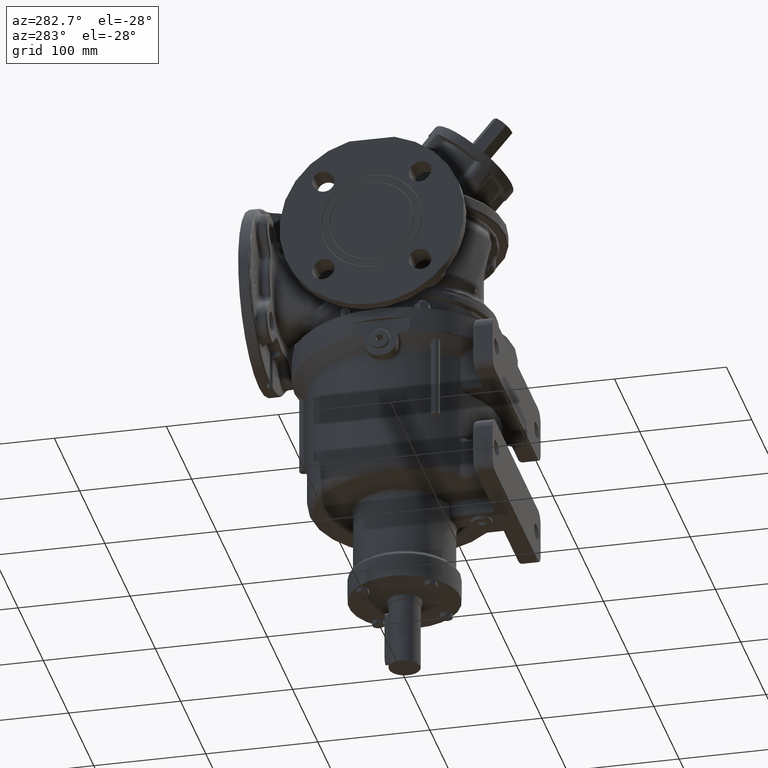
[diagram: clean part render]
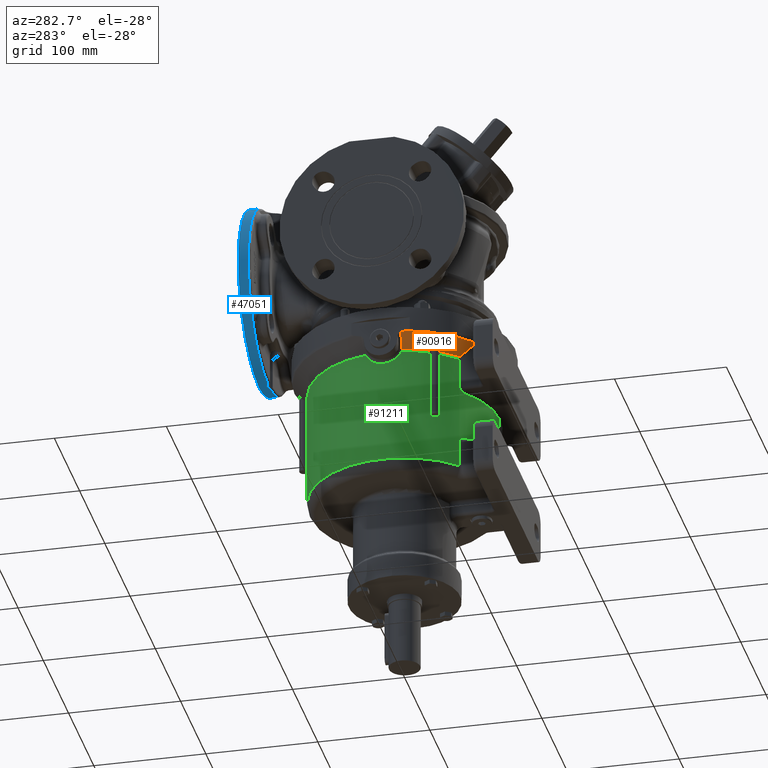
[diagram: same view with three faces highlighted in distinct colors, each labeled with its STEP entity id]
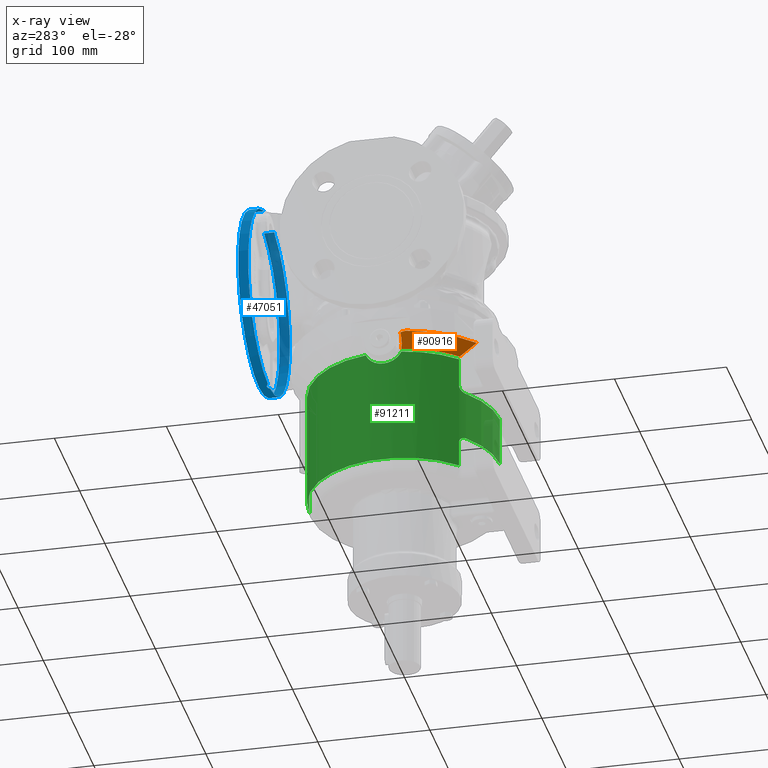
[diagram: x-ray of the same camera — body ghosted, the three highlighted faces saturated]
A machine part, auxiliary view with three faces highlighted in distinct colors.
The next image is the same camera in x-ray (body ghosted, the three faces saturated) — at least one of them is partly hidden behind the body in this view.
Their STEP definitions:

[orange] entity #90916 — the highlighted conical surface has half-angle 45 deg.
#29976=CARTESIAN_POINT('',(-9.5E1,-1.761329098185E1,-1.388101625872E1));
#29977=CARTESIAN_POINT('',(-9.5E1,-1.815064639988E1,-1.378305831121E1));
#29978=CARTESIAN_POINT('',(-9.5E1,-1.922690537515E1,-1.357819048843E1));
#29979=CARTESIAN_POINT('',(-9.5E1,-2.084560343901E1,-1.324413526992E1));
#29980=CARTESIAN_POINT('',(-9.5E1,-2.192829400964E1,-1.300347855341E1));
#29981=CARTESIAN_POINT('',(-9.5E1,-2.247047364031E1,-1.287867965644E1));
#29983=CARTESIAN_POINT('',(0.E0,0.E0,-1.287867965644E1));
#29984=DIRECTION('',(0.E0,0.E0,-1.E0));
#29985=DIRECTION('',(-6.104712912239E-1,-7.920383845442E-1,0.E0));
#29986=AXIS2_PLACEMENT_3D('',#29983,#29984,#29985);
#29988=CARTESIAN_POINT('',(-5.921021708917E1,-7.731582066189E1,
-1.311629534482E1));
#29989=CARTESIAN_POINT('',(-5.925288829204E1,-7.731626576852E1,
-1.308999746491E1));
#29990=CARTESIAN_POINT('',(-5.933828661276E1,-7.731715644652E1,
-1.303733254524E1));
#29991=CARTESIAN_POINT('',(-5.946655107853E1,-7.731849384072E1,
-1.295812800727E1));
#29992=CARTESIAN_POINT('',(-5.955217390162E1,-7.731938636823E1,
-1.290518563004E1));
#29993=CARTESIAN_POINT('',(-5.959501348112E1,-7.731983286199E1,
-1.287867965644E1));
#29995=CARTESIAN_POINT('',(-5.904159226380E1,-6.236375551944E1,
-2.462132034356E1));
#29996=CARTESIAN_POINT('',(-5.904933324161E1,-6.299963469418E1,
-2.415423289237E1));
#29997=CARTESIAN_POINT('',(-5.906490841192E1,-6.429059684672E1,
-2.319953336480E1));
#29998=CARTESIAN_POINT('',(-5.908846983588E1,-6.628181365616E1,
-2.170733054982E1));
#29999=CARTESIAN_POINT('',(-5.911229341502E1,-6.833738719400E1,
-2.014704832011E1));
#30000=CARTESIAN_POINT('',(-5.913635740395E1,-7.046010189658E1,
-1.851571196521E1));
#30001=CARTESIAN_POINT('',(-5.916069290065E1,-7.265778589862E1,
-1.680637527972E1));
#30002=CARTESIAN_POINT('',(-5.918527032129E1,-7.493321920190E1,
-1.501590470135E1));
#30003=CARTESIAN_POINT('',(-5.920187779724E1,-7.651185350635E1,
-1.375965915280E1));
#30004=CARTESIAN_POINT('',(-5.921021708917E1,-7.731582066189E1,
-1.311629534482E1));
#30006=CARTESIAN_POINT('',(0.E0,0.E0,-2.462132034356E1));
#30007=DIRECTION('',(0.E0,0.E0,1.E0));
#30008=DIRECTION('',(-8.555669295082E-1,-5.176922146720E-1,0.E0));
#30009=AXIS2_PLACEMENT_3D('',#30006,#30007,#30008);
#30011=CARTESIAN_POINT('',(-7.347495826388E1,-4.445872386445E1,
-2.462132034356E1));
#30012=CARTESIAN_POINT('',(-7.346714105312E1,-4.452324184851E1,
-2.459460803251E1));
#30013=CARTESIAN_POINT('',(-7.345418003608E1,-4.465364049765E1,
-2.453806786871E1));
#30014=CARTESIAN_POINT('',(-7.344319812381E1,-4.485278589903E1,
-2.444382326924E1));
#30015=CARTESIAN_POINT('',(-7.344108135142E1,-4.505548310756E1,
-2.433980607158E1));
#30016=CARTESIAN_POINT('',(-7.344828835347E1,-4.526153000393E1,
-2.422574269568E1));
#30017=CARTESIAN_POINT('',(-7.346530336106E1,-4.547071522535E1,
-2.410134614049E1));
#30018=CARTESIAN_POINT('',(-7.349263756221E1,-4.568274938040E1,
-2.396635100777E1));
#30019=CARTESIAN_POINT('',(-7.353082087112E1,-4.589727565140E1,
-2.382051554327E1));
#30020=CARTESIAN_POINT('',(-7.358039513277E1,-4.611385935038E1,
-2.366363327807E1));
#30021=CARTESIAN_POINT('',(-7.364190221977E1,-4.633197370992E1,
-2.349555100346E1));
#30022=CARTESIAN_POINT('',(-7.371587431030E1,-4.655100297759E1,
-2.331617558112E1));
#30023=CARTESIAN_POINT('',(-7.380282011213E1,-4.677023312211E1,
-2.312549057680E1));
#30024=CARTESIAN_POINT('',(-7.390320369638E1,-4.698883751645E1,
-2.292358168222E1));
#30025=CARTESIAN_POINT('',(-7.401743350910E1,-4.720589329945E1,
-2.271063686797E1));
#30026=CARTESIAN_POINT('',(-7.414583672136E1,-4.742036791459E1,
-2.248697459262E1));
#30027=CARTESIAN_POINT('',(-7.428863365224E1,-4.763112199986E1,
-2.225306292757E1));
#30028=CARTESIAN_POINT('',(-7.444592573889E1,-4.783693442329E1,
-2.200951499749E1));
#30029=CARTESIAN_POINT('',(-7.461765826378E1,-4.803649545365E1,
-2.175712258088E1));
#30030=CARTESIAN_POINT('',(-7.480360584063E1,-4.822843869503E1,
-2.149684940397E1));
#30031=CARTESIAN_POINT('',(-7.500334803934E1,-4.841136185107E1,
-2.122983859163E1));
#30032=CARTESIAN_POINT('',(-7.521626913419E1,-4.858386816841E1,
-2.095738860950E1));
#30033=CARTESIAN_POINT('',(-7.544149048115E1,-4.874456151984E1,
-2.068101106073E1));
#30034=CARTESIAN_POINT('',(-7.567802433323E1,-4.889219664605E1,
-2.040221856284E1));
#30035=CARTESIAN_POINT('',(-7.592452713707E1,-4.902552506233E1,
-2.012281462616E1));
#30036=CARTESIAN_POINT('',(-7.617861687815E1,-4.914312149317E1,
-1.984556091805E1));
#30037=CARTESIAN_POINT('',(-7.643782799312E1,-4.924407590791E1,
-1.957300058318E1));
#30038=CARTESIAN_POINT('',(-7.670046032399E1,-4.932815896723E1,
-1.930665699772E1));
#30039=CARTESIAN_POINT('',(-7.696494057409E1,-4.939537460012E1,
-1.904781466487E1));
#30040=CARTESIAN_POINT('',(-7.722968072501E1,-4.944590517960E1,
-1.879767003175E1));
#30041=CARTESIAN_POINT('',(-7.749322804373E1,-4.948012610116E1,
-1.855719959588E1));
#30042=CARTESIAN_POINT('',(-7.775424823052E1,-4.949856491632E1,
-1.832719814343E1));
#30043=CARTESIAN_POINT('',(-7.801153661515E1,-4.950187538131E1,
-1.810828511787E1));
#30044=CARTESIAN_POINT('',(-7.826404189022E1,-4.949080949404E1,
-1.790090114212E1));
#30045=CARTESIAN_POINT('',(-7.851086929810E1,-4.946618686311E1,
-1.770532285830E1));
#30046=CARTESIAN_POINT('',(-7.875125978447E1,-4.942887063352E1,
-1.752169421016E1));
#30047=CARTESIAN_POINT('',(-7.898461159275E1,-4.937974077842E1,
-1.735002285126E1));
#30048=CARTESIAN_POINT('',(-7.921045271511E1,-4.931967426164E1,
-1.719021408477E1));
#30049=CARTESIAN_POINT('',(-7.942843038276E1,-4.924952909386E1,
-1.704208810325E1));
#30050=CARTESIAN_POINT('',(-7.963831175013E1,-4.917012519700E1,
-1.690538912581E1));
#30051=CARTESIAN_POINT('',(-7.983995427831E1,-4.908223776138E1,
-1.677981349969E1));
#30052=CARTESIAN_POINT('',(-8.003329940471E1,-4.898658711479E1,
-1.666501979138E1));
#30053=CARTESIAN_POINT('',(-8.021836043470E1,-4.888383135662E1,
-1.656064221815E1));
#30054=CARTESIAN_POINT('',(-8.039520277816E1,-4.877456638540E1,
-1.646630674756E1));
#30055=CARTESIAN_POINT('',(-8.056393813965E1,-4.865932084629E1,
-1.638163796100E1));
#30056=CARTESIAN_POINT('',(-8.072470960173E1,-4.853855764786E1,
-1.630627028596E1));
#30057=CARTESIAN_POINT('',(-8.087767810588E1,-4.841267812259E1,
-1.623985677315E1));
#30058=CARTESIAN_POINT('',(-8.102301883306E1,-4.828202035890E1,
-1.618207247174E1));
#30059=CARTESIAN_POINT('',(-8.116091476613E1,-4.814685870205E1,
-1.613261960476E1));
#30060=CARTESIAN_POINT('',(-8.129153394837E1,-4.800742272715E1,
-1.609123694760E1));
#30061=CARTESIAN_POINT('',(-8.141504068993E1,-4.786388447336E1,
-1.605769633857E1));
#30062=CARTESIAN_POINT('',(-8.153158149777E1,-4.771637066582E1,
-1.603180820181E1));
#30063=CARTESIAN_POINT('',(-8.164128393068E1,-4.756495894575E1,
-1.601342406190E1));
#30064=CARTESIAN_POINT('',(-8.174422603840E1,-4.740972989725E1,
-1.600243679994E1));
#30065=CARTESIAN_POINT('',(-8.180843645675E1,-4.730363156913E1,-1.6E1));
#30066=CARTESIAN_POINT('',(-8.183940065763E1,-4.725E1,-1.6E1));
#30068=CARTESIAN_POINT('',(-8.183940065763E1,-4.725E1,-1.6E1));
#30069=CARTESIAN_POINT('',(-8.187037769008E1,-4.719634620593E1,-1.6E1));
#30070=CARTESIAN_POINT('',(-8.193018007156E1,-4.708764381876E1,
-1.600243882138E1));
#30071=CARTESIAN_POINT('',(-8.201317095010E1,-4.692080855454E1,
-1.601343510045E1));
#30072=CARTESIAN_POINT('',(-8.208946989863E1,-4.675002496489E1,
-1.603183423095E1));
#30073=CARTESIAN_POINT('',(-8.215896811959E1,-4.657526552848E1,
-1.605774343129E1));
#30074=CARTESIAN_POINT('',(-8.222153444166E1,-4.639645859079E1,
-1.609131131587E1));
#30075=CARTESIAN_POINT('',(-8.227698575137E1,-4.621354022234E1,
-1.613272776424E1));
#30076=CARTESIAN_POINT('',(-8.232509054034E1,-4.602645425833E1,
-1.618222120174E1));
#30077=CARTESIAN_POINT('',(-8.236556573882E1,-4.583516906947E1,
-1.624005348845E1));
#30078=CARTESIAN_POINT('',(-8.239808156700E1,-4.563966404940E1,
-1.630652267735E1));
#30079=CARTESIAN_POINT('',(-8.242225714459E1,-4.543995618707E1,
-1.638195432744E1));
#30080=CARTESIAN_POINT('',(-8.243766375443E1,-4.523610547540E1,
-1.646669661265E1));
#30081=CARTESIAN_POINT('',(-8.244382796375E1,-4.502822241420E1,
-1.656111456801E1));
#30082=CARTESIAN_POINT('',(-8.244023539787E1,-4.481647300117E1,
-1.666558501017E1));
#30083=CARTESIAN_POINT('',(-8.242633615133E1,-4.460109832485E1,
-1.678048308803E1));
#30084=CARTESIAN_POINT('',(-8.240155282901E1,-4.438241907124E1,
-1.690617382168E1));
#30085=CARTESIAN_POINT('',(-8.236529002907E1,-4.416084640573E1,
-1.704299931121E1));
#30086=CARTESIAN_POINT('',(-8.231694653402E1,-4.393689136929E1,
-1.719126426955E1));
#30087=CARTESIAN_POINT('',(-8.225592807556E1,-4.371116821274E1,
-1.735122383424E1));
#30088=CARTESIAN_POINT('',(-8.218166782537E1,-4.348441430528E1,
-1.752305667889E1));
#30089=CARTESIAN_POINT('',(-8.209364172313E1,-4.325747776897E1,
-1.770685769763E1));
#30090=CARTESIAN_POINT('',(-8.199138812187E1,-4.303132126724E1,
-1.790261899706E1));
#30091=CARTESIAN_POINT('',(-8.187454018027E1,-4.280703791836E1,
-1.811019377223E1));
#30092=CARTESIAN_POINT('',(-8.174283633171E1,-4.258581473554E1,
-1.832930364048E1));
#30093=CARTESIAN_POINT('',(-8.159615194628E1,-4.236894009066E1,
-1.855950632920E1));
#30094=CARTESIAN_POINT('',(-8.143452455394E1,-4.215778630712E1,
-1.880018026456E1));
#30095=CARTESIAN_POINT('',(-8.125816854136E1,-4.195377685792E1,
-1.905052516700E1));
#30096=CARTESIAN_POINT('',(-8.106748279934E1,-4.175835448936E1,
-1.930956809456E1));
#30097=CARTESIAN_POINT('',(-8.086312074488E1,-4.157300059944E1,
-1.957609035736E1));
#30098=CARTESIAN_POINT('',(-8.064584160434E1,-4.139905365753E1,
-1.984884069707E1));
#30099=CARTESIAN_POINT('',(-8.041668758093E1,-4.123788053076E1,
-2.012629727581E1));
#30100=CARTESIAN_POINT('',(-8.017806114779E1,-4.109138000348E1,
-2.040547762485E1));
#30101=CARTESIAN_POINT('',(-7.993224523882E1,-4.096072880127E1,
-2.068382583010E1));
#30102=CARTESIAN_POINT('',(-7.968070108765E1,-4.084631083148E1,
-2.095986878219E1));
#30103=CARTESIAN_POINT('',(-7.942514374091E1,-4.074843386071E1,
-2.123193256934E1));
#30104=CARTESIAN_POINT('',(-7.916715030634E1,-4.066712798962E1,
-2.149858396924E1));
#30105=CARTESIAN_POINT('',(-7.890825139693E1,-4.060223807089E1,
-2.175850831057E1));
#30106=CARTESIAN_POINT('',(-7.864985597242E1,-4.055342526958E1,
-2.201057730339E1));
#30107=CARTESIAN_POINT('',(-7.839325369191E1,-4.052020517924E1,
-2.225383132620E1));
#30108=CARTESIAN_POINT('',(-7.813959883211E1,-4.050197421322E1,
-2.248748343915E1));
#30109=CARTESIAN_POINT('',(-7.788989511215E1,-4.049803897100E1,
-2.271092105643E1));
#30110=CARTESIAN_POINT('',(-7.764501467284E1,-4.050764413073E1,
-2.292367772995E1));
#30111=CARTESIAN_POINT('',(-7.740568483182E1,-4.052999564772E1,
-2.312543542740E1));
#30112=CARTESIAN_POINT('',(-7.717249702243E1,-4.056428439269E1,
-2.331600657116E1));
#30113=CARTESIAN_POINT('',(-7.694593699098E1,-4.060970045519E1,
-2.349530131554E1));
#30114=CARTESIAN_POINT('',(-7.672636890378E1,-4.066545132834E1,
-2.366333356945E1));
#30115=CARTESIAN_POINT('',(-7.651405677690E1,-4.073077449563E1,
-2.382019626567E1));
#30116=CARTESIAN_POINT('',(-7.630919101714E1,-4.080494102277E1,
-2.396603621176E1));
#30117=CARTESIAN_POINT('',(-7.611187913385E1,-4.088726824048E1,
-2.410105616091E1));
#30118=CARTESIAN_POINT('',(-7.592216524705E1,-4.097712362017E1,
-2.422549539267E1));
#30119=CARTESIAN_POINT('',(-7.574005011274E1,-4.107392160153E1,
-2.433961322334E1));
#30120=CARTESIAN_POINT('',(-7.556547736778E1,-4.117713973872E1,
-2.444369287229E1));
#30121=CARTESIAN_POINT('',(-7.539839637594E1,-4.128628159413E1,
-2.453800367775E1));
#30122=CARTESIAN_POINT('',(-7.529187000027E1,-4.136275879750E1,
-2.459458697027E1));
#30123=CARTESIAN_POINT('',(-7.523986341839E1,-4.140181846629E1,
-2.462132034356E1));
#30125=CARTESIAN_POINT('',(0.E0,0.E0,-2.462132034356E1));
#30126=DIRECTION('',(0.E0,0.E0,1.E0));
#30127=DIRECTION('',(-9.823109981148E-1,-1.872567835424E-1,0.E0));
#30128=AXIS2_PLACEMENT_3D('',#30125,#30126,#30127);
#30130=CARTESIAN_POINT('',(-8.435957161341E1,-1.608136535007E1,
-2.462132026018E1));
#30131=CARTESIAN_POINT('',(-8.454866380074E1,-1.616898668189E1,
-2.441916525244E1));
#30132=CARTESIAN_POINT('',(-8.493632846887E1,-1.633924999970E1,
-2.400638539783E1));
#30133=CARTESIAN_POINT('',(-8.554639433647E1,-1.657757591300E1,
-2.336219028793E1));
#30134=CARTESIAN_POINT('',(-8.618742106202E1,-1.679740814123E1,
-2.269098928901E1));
#30135=CARTESIAN_POINT('',(-8.685984287193E1,-1.699636213034E1,
-2.199289421796E1));
#30136=CARTESIAN_POINT('',(-8.756590582677E1,-1.717243650845E1,
-2.126614799646E1));
#30137=CARTESIAN_POINT('',(-8.830514995188E1,-1.732251725678E1,
-2.051183895553E1));
#30138=CARTESIAN_POINT('',(-8.906544875540E1,-1.744209886991E1,
-1.974273949257E1));
#30139=CARTESIAN_POINT('',(-8.984276431097E1,-1.752966403405E1,
-1.896307127340E1));
#30140=CARTESIAN_POINT('',(-9.063568986386E1,-1.758421038588E1,
-1.817433524524E1));
#30141=CARTESIAN_POINT('',(-9.117251422567E1,-1.759796989857E1,
-1.764466419074E1));
#30142=CARTESIAN_POINT('',(-9.144316457862E1,-1.759908958940E1,
-1.737867965644E1));
#30144=CARTESIAN_POINT('',(-9.144316457862E1,-1.759908958940E1,
-1.737867965644E1));
#30145=CARTESIAN_POINT('',(-9.182788869986E1,-1.760068111308E1,
-1.700058793289E1));
#30146=CARTESIAN_POINT('',(-9.260431767071E1,-1.760385577161E1,
-1.623738800510E1));
#30147=CARTESIAN_POINT('',(-9.378943282526E1,-1.760858863325E1,
-1.507199286356E1));
#30148=CARTESIAN_POINT('',(-9.459409841554E1,-1.761172681909E1,
-1.428040154678E1));
#30149=CARTESIAN_POINT('',(-9.5E1,-1.761329098185E1,-1.388101625872E1));
#42187=VERTEX_POINT('',#30011);
#42188=VERTEX_POINT('',#30066);
#42189=VERTEX_POINT('',#30123);
#42215=CARTESIAN_POINT('',(-9.144316457862E1,-1.759908958940E1,
-1.737867965644E1));
#42217=VERTEX_POINT('',#42215);
#42428=CARTESIAN_POINT('',(-8.435957115676E1,-1.608136513362E1,
-2.462132076072E1));
#42429=VERTEX_POINT('',#42428);
#42435=VERTEX_POINT('',#29995);
#42436=VERTEX_POINT('',#30004);
#42440=VERTEX_POINT('',#29993);
#42545=VERTEX_POINT('',#29976);
#42546=VERTEX_POINT('',#29981);
#90893=CARTESIAN_POINT('',(0.E0,0.E0,-1.875000000275E1));
#90894=DIRECTION('',(0.E0,0.E0,1.E0));
#90895=DIRECTION('',(0.E0,-1.E0,0.E0));
#90896=AXIS2_PLACEMENT_3D('',#90893,#90894,#90895);
#90897=CONICAL_SURFACE('',#90896,9.174999999725E1,4.5E1);
#90898=ORIENTED_EDGE('',*,*,#89382,.T.);
#90899=ORIENTED_EDGE('',*,*,#89422,.F.);
#90900=ORIENTED_EDGE('',*,*,#89617,.F.);
#90902=ORIENTED_EDGE('',*,*,#90901,.F.);
#90904=ORIENTED_EDGE('',*,*,#90903,.F.);
#90906=ORIENTED_EDGE('',*,*,#90905,.T.);
#90908=ORIENTED_EDGE('',*,*,#90907,.T.);
#90910=ORIENTED_EDGE('',*,*,#90909,.F.);
#90912=ORIENTED_EDGE('',*,*,#90911,.T.);
#90913=ORIENTED_EDGE('',*,*,#90883,.T.);
#90914=EDGE_LOOP('',(#90898,#90899,#90900,#90902,#90904,#90906,#90908,#90910,
#90912,#90913));
#90915=FACE_OUTER_BOUND('',#90914,.F.);
#90916=ADVANCED_FACE('',(#90915),#90897,.T.);
#29982=B_SPLINE_CURVE_WITH_KNOTS('',3,(#29976,#29977,#29978,#29979,#29980,
#29981),.UNSPECIFIED.,.F.,.F.,(4,1,1,4),(0.E0,3.333333333333E-1,
6.666666666667E-1,1.E0),.UNSPECIFIED.);
#29987=CIRCLE('',#29986,9.762132034356E1);
#29994=B_SPLINE_CURVE_WITH_KNOTS('',3,(#29988,#29989,#29990,#29991,#29992,
#29993),.UNSPECIFIED.,.F.,.F.,(4,1,1,4),(0.E0,3.333333333333E-1,
6.666666666667E-1,1.E0),.UNSPECIFIED.);
#30005=B_SPLINE_CURVE_WITH_KNOTS('',3,(#29995,#29996,#29997,#29998,#29999,
#30000,#30001,#30002,#30003,#30004),.UNSPECIFIED.,.F.,.F.,(4,1,1,1,1,1,1,4),(
0.E0,1.428571428571E-1,2.857142857143E-1,4.285714285714E-1,5.714285714286E-1,
7.142857142857E-1,8.571428571429E-1,1.E0),.UNSPECIFIED.);
#30010=CIRCLE('',#30009,8.587867965644E1);
#30067=B_SPLINE_CURVE_WITH_KNOTS('',3,(#30011,#30012,#30013,#30014,#30015,
#30016,#30017,#30018,#30019,#30020,#30021,#30022,#30023,#30024,#30025,#30026,
#30027,#30028,#30029,#30030,#30031,#30032,#30033,#30034,#30035,#30036,#30037,
#30038,#30039,#30040,#30041,#30042,#30043,#30044,#30045,#30046,#30047,#30048,
#30049,#30050,#30051,#30052,#30053,#30054,#30055,#30056,#30057,#30058,#30059,
#30060,#30061,#30062,#30063,#30064,#30065,#30066),.UNSPECIFIED.,.F.,.F.,(4,1,1,
1,1,1,1,1,1,1,1,1,1,1,1,1,1,1,1,1,1,1,1,1,1,1,1,1,1,1,1,1,1,1,1,1,1,1,1,1,1,1,1,
1,1,1,1,1,1,1,1,1,1,4),(0.E0,1.886792452830E-2,3.773584905660E-2,
5.660377358491E-2,7.547169811321E-2,9.433962264151E-2,1.132075471698E-1,
1.320754716981E-1,1.509433962264E-1,1.698113207547E-1,1.886792452830E-1,
2.075471698113E-1,2.264150943396E-1,2.452830188679E-1,2.641509433962E-1,
2.830188679245E-1,3.018867924528E-1,3.207547169811E-1,3.396226415094E-1,
3.584905660377E-1,3.773584905660E-1,3.962264150943E-1,4.150943396226E-1,
4.339622641509E-1,4.528301886792E-1,4.716981132075E-1,4.905660377358E-1,
5.094339622642E-1,5.283018867925E-1,5.471698113208E-1,5.660377358491E-1,
5.849056603774E-1,6.037735849057E-1,6.226415094340E-1,6.415094339623E-1,
6.603773584906E-1,6.792452830189E-1,6.981132075472E-1,7.169811320755E-1,
7.358490566038E-1,7.547169811321E-1,7.735849056604E-1,7.924528301887E-1,
8.113207547170E-1,8.301886792453E-1,8.490566037736E-1,8.679245283019E-1,
8.867924528302E-1,9.056603773585E-1,9.245283018868E-1,9.433962264151E-1,
9.622641509434E-1,9.811320754717E-1,1.E0),.UNSPECIFIED.);
#30124=B_SPLINE_CURVE_WITH_KNOTS('',3,(#30068,#30069,#30070,#30071,#30072,
#30073,#30074,#30075,#30076,#30077,#30078,#30079,#30080,#30081,#30082,#30083,
#30084,#30085,#30086,#30087,#30088,#30089,#30090,#30091,#30092,#30093,#30094,
#30095,#30096,#30097,#30098,#30099,#30100,#30101,#30102,#30103,#30104,#30105,
#30106,#30107,#30108,#30109,#30110,#30111,#30112,#30113,#30114,#30115,#30116,
#30117,#30118,#30119,#30120,#30121,#30122,#30123),.UNSPECIFIED.,.F.,.F.,(4,1,1,
1,1,1,1,1,1,1,1,1,1,1,1,1,1,1,1,1,1,1,1,1,1,1,1,1,1,1,1,1,1,1,1,1,1,1,1,1,1,1,1,
1,1,1,1,1,1,1,1,1,1,4),(0.E0,1.886792452830E-2,3.773584905660E-2,
5.660377358491E-2,7.547169811321E-2,9.433962264151E-2,1.132075471698E-1,
1.320754716981E-1,1.509433962264E-1,1.698113207547E-1,1.886792452830E-1,
2.075471698113E-1,2.264150943396E-1,2.452830188679E-1,2.641509433962E-1,
2.830188679245E-1,3.018867924528E-1,3.207547169811E-1,3.396226415094E-1,
3.584905660377E-1,3.773584905660E-1,3.962264150943E-1,4.150943396226E-1,
4.339622641509E-1,4.528301886792E-1,4.716981132075E-1,4.905660377358E-1,
5.094339622642E-1,5.283018867925E-1,5.471698113208E-1,5.660377358491E-1,
5.849056603774E-1,6.037735849057E-1,6.226415094340E-1,6.415094339623E-1,
6.603773584906E-1,6.792452830189E-1,6.981132075472E-1,7.169811320755E-1,
7.358490566038E-1,7.547169811321E-1,7.735849056604E-1,7.924528301887E-1,
8.113207547170E-1,8.301886792453E-1,8.490566037736E-1,8.679245283019E-1,
8.867924528302E-1,9.056603773585E-1,9.245283018868E-1,9.433962264151E-1,
9.622641509434E-1,9.811320754717E-1,1.E0),.UNSPECIFIED.);
#30129=CIRCLE('',#30128,8.587867965644E1);
#30143=B_SPLINE_CURVE_WITH_KNOTS('',3,(#30130,#30131,#30132,#30133,#30134,
#30135,#30136,#30137,#30138,#30139,#30140,#30141,#30142),.UNSPECIFIED.,.F.,.F.,(
4,1,1,1,1,1,1,1,1,1,4),(0.E0,1.E-1,2.E-1,3.E-1,4.E-1,5.E-1,6.E-1,7.E-1,8.E-1,
9.E-1,1.E0),.UNSPECIFIED.);
#30150=B_SPLINE_CURVE_WITH_KNOTS('',3,(#30144,#30145,#30146,#30147,#30148,
#30149),.UNSPECIFIED.,.F.,.F.,(4,1,1,4),(0.E0,3.333333333333E-1,
6.666666666667E-1,1.E0),.UNSPECIFIED.);
#89382=EDGE_CURVE('',#42545,#42546,#29982,.T.);
#89422=EDGE_CURVE('',#42440,#42546,#29987,.T.);
#89617=EDGE_CURVE('',#42436,#42440,#29994,.T.);
#90883=EDGE_CURVE('',#42217,#42545,#30150,.T.);
#90901=EDGE_CURVE('',#42435,#42436,#30005,.T.);
#90903=EDGE_CURVE('',#42187,#42435,#30010,.T.);
#90905=EDGE_CURVE('',#42187,#42188,#30067,.T.);
#90907=EDGE_CURVE('',#42188,#42189,#30124,.T.);
#90909=EDGE_CURVE('',#42429,#42189,#30129,.T.);
#90911=EDGE_CURVE('',#42429,#42217,#30143,.T.);

[blue] entity #47051 — the highlighted cylindrical surface (partial cylindrical patch) has radius 82.5 mm, axis along (0, 1, 0).
#817=CARTESIAN_POINT('',(-4.337049688440E0,1.21E2,-1.885921127338E0));
#1043=CARTESIAN_POINT('',(3.975303261346E-14,1.229E2,-2.E0));
#1044=CARTESIAN_POINT('',(-8.542090064553E-2,1.229E2,-2.E0));
#1045=CARTESIAN_POINT('',(-2.560835052101E-1,1.228962952900E2,
-1.999734932021E0));
#1046=CARTESIAN_POINT('',(-5.118648282206E-1,1.228796148676E2,
-1.998543709767E0));
#1047=CARTESIAN_POINT('',(-7.664487325973E-1,1.228518746773E2,
-1.996570088755E0));
#1048=CARTESIAN_POINT('',(-1.019872072209E0,1.228130673497E2,
-1.993824667725E0));
#1049=CARTESIAN_POINT('',(-1.271158244582E0,1.227633356937E2,
-1.990332974485E0));
#1050=CARTESIAN_POINT('',(-1.520276866273E0,1.227026902503E2,
-1.986115405790E0));
#1051=CARTESIAN_POINT('',(-1.766506583377E0,1.226312828799E2,
-1.981206347835E0));
#1052=CARTESIAN_POINT('',(-2.009364643511E0,1.225492684384E2,
-1.975644010897E0));
#1053=CARTESIAN_POINT('',(-2.248660006876E0,1.224566884565E2,
-1.969462749647E0));
#1054=CARTESIAN_POINT('',(-2.483511681507E0,1.223538861169E2,
-1.962720269118E0));
#1055=CARTESIAN_POINT('',(-2.713943316236E0,1.222408456782E2,
-1.955453699705E0));
#1056=CARTESIAN_POINT('',(-2.939128479431E0,1.221179543497E2,
-1.947729148109E0));
#1057=CARTESIAN_POINT('',(-3.158851709173E0,1.219853411933E2,
-1.939598243645E0));
#1058=CARTESIAN_POINT('',(-3.372692301164E0,1.218432320326E2,
-1.931121284659E0));
#1059=CARTESIAN_POINT('',(-3.580020293536E0,1.216920597040E2,
-1.922371766485E0));
#1060=CARTESIAN_POINT('',(-3.780791307670E0,1.215318412435E2,
-1.913400606833E0));
#1061=CARTESIAN_POINT('',(-3.974219269657E0,1.213632041833E2,
-1.904293675198E0));
#1062=CARTESIAN_POINT('',(-4.160317876216E0,1.211861351129E2,
-1.895102030182E0));
#1063=CARTESIAN_POINT('',(-4.279008774408E0,1.210629315820E2,
-1.888976580560E0));
#1064=CARTESIAN_POINT('',(-4.337049688440E0,1.21E2,-1.885921127338E0));
#1066=CARTESIAN_POINT('',(4.337049688440E0,1.21E2,-1.885921127338E0));
#1067=CARTESIAN_POINT('',(4.279008771501E0,1.210629315852E2,-1.888976580713E0));
#1068=CARTESIAN_POINT('',(4.160317869743E0,1.211861351174E2,-1.895102030457E0));
#1069=CARTESIAN_POINT('',(3.974219351397E0,1.213632041085E2,-1.904293671242E0));
#1070=CARTESIAN_POINT('',(3.780791330525E0,1.215318412258E2,-1.913400605829E0));
#1071=CARTESIAN_POINT('',(3.580020356969E0,1.216920596523E2,-1.922371763609E0));
#1072=CARTESIAN_POINT('',(3.372692482129E0,1.218432319079E2,-1.931121277300E0));
#1073=CARTESIAN_POINT('',(3.158851620386E0,1.219853412573E2,-1.939598247386E0));
#1074=CARTESIAN_POINT('',(2.939128154909E0,1.221179545345E2,-1.947729159606E0));
#1075=CARTESIAN_POINT('',(2.713943150715E0,1.222408457665E2,-1.955453705298E0));
#1076=CARTESIAN_POINT('',(2.483511058557E0,1.223538864121E2,-1.962720288208E0));
#1077=CARTESIAN_POINT('',(2.248659385751E0,1.224566887079E2,-1.969462766398E0));
#1078=CARTESIAN_POINT('',(2.009365608741E0,1.225492680202E2,-1.975643983194E0));
#1079=CARTESIAN_POINT('',(1.766511145965E0,1.226312814762E2,-1.981206251861E0));
#1080=CARTESIAN_POINT('',(1.520277832338E0,1.227026899527E2,-1.986115385294E0));
#1081=CARTESIAN_POINT('',(1.271166867057E0,1.227633337426E2,-1.990332838313E0));
#1082=CARTESIAN_POINT('',(1.019876358750E0,1.228130666856E2,-1.993824620657E0));
#1083=CARTESIAN_POINT('',(7.664512173101E-1,1.228518743281E2,
-1.996570064022E0));
#1084=CARTESIAN_POINT('',(5.118688748015E-1,1.228796145352E2,
-1.998543686051E0));
#1085=CARTESIAN_POINT('',(2.560837030817E-1,1.228962953261E2,
-1.999734934591E0));
#1086=CARTESIAN_POINT('',(8.542090355678E-2,1.229E2,-2.E0));
#1087=CARTESIAN_POINT('',(3.975303261346E-14,1.229E2,-2.E0));
#1089=CARTESIAN_POINT('',(2.417280064492E-14,1.21E2,8.05E1));
#1090=DIRECTION('',(0.E0,-1.E0,0.E0));
#1091=DIRECTION('',(5.257029925382E-2,0.E0,-9.986172257859E-1));
#1092=AXIS2_PLACEMENT_3D('',#1089,#1090,#1091);
#1094=CARTESIAN_POINT('',(2.288756140832E1,1.21E2,1.597616523470E2));
#1095=CARTESIAN_POINT('',(2.276798512761E1,1.209999924505E2,1.597961800024E2));
#1096=CARTESIAN_POINT('',(2.253092955440E1,1.209958685139E2,1.598640466323E2));
#1097=CARTESIAN_POINT('',(2.218240585225E1,1.209781107400E2,1.599621532262E2));
#1098=CARTESIAN_POINT('',(2.183875893789E1,1.209492481685E2,1.600572778239E2));
#1099=CARTESIAN_POINT('',(2.149857867096E1,1.209094850864E2,1.601498728115E2));
#1100=CARTESIAN_POINT('',(2.116018187544E1,1.208587393905E2,1.602404374886E2));
#1101=CARTESIAN_POINT('',(2.082350542617E1,1.207969730028E2,1.603290156325E2));
#1102=CARTESIAN_POINT('',(2.048856752451E1,1.207241065631E2,1.604156327291E2));
#1103=CARTESIAN_POINT('',(2.026641342073E1,1.206680657406E2,1.604720908498E2));
#1104=CARTESIAN_POINT('',(2.015562904011E1,1.206381655751E2,1.605E2));
#1106=DIRECTION('',(1.637567384540E-6,9.999999999987E-1,0.E0));
#1107=VECTOR('',#1106,9.361834424913E0);
#1108=CARTESIAN_POINT('',(2.015562904011E1,1.206381655751E2,1.605E2));
#1109=LINE('',#1108,#1107);
#1110=CARTESIAN_POINT('',(2.417280064492E-14,1.3E2,8.05E1));
#1111=DIRECTION('',(0.E0,1.E0,0.E0));
#1112=DIRECTION('',(2.443108408575E-1,0.E0,9.696969696970E-1));
#1113=AXIS2_PLACEMENT_3D('',#1110,#1111,#1112);
#1115=DIRECTION('',(-2.725677652016E-6,9.999999999963E-1,0.E0));
#1116=VECTOR('',#1115,9.361843282804E0);
#1117=CARTESIAN_POINT('',(-2.015561885338E1,1.206381567172E2,1.605E2));
#1118=LINE('',#1117,#1116);
#1119=CARTESIAN_POINT('',(-2.015561885338E1,1.206381567172E2,1.605E2));
#1120=CARTESIAN_POINT('',(-2.026695544093E1,1.206682083809E2,1.604719530890E2));
#1121=CARTESIAN_POINT('',(-2.049012970052E1,1.207244842454E2,1.604152347026E2));
#1122=CARTESIAN_POINT('',(-2.082619560284E1,1.207975111158E2,1.603283153190E2));
#1123=CARTESIAN_POINT('',(-2.116402162041E1,1.208593776668E2,1.602394203588E2));
#1124=CARTESIAN_POINT('',(-2.150389719361E1,1.209102001336E2,1.601484400001E2));
#1125=CARTESIAN_POINT('',(-2.184616528840E1,1.209499971035E2,1.600552472150E2));
#1126=CARTESIAN_POINT('',(-2.219081136839E1,1.209786661036E2,1.599598064010E2));
#1127=CARTESIAN_POINT('',(-2.253782557906E1,1.209960551334E2,1.598620829355E2));
#1128=CARTESIAN_POINT('',(-2.277072418004E1,1.209999906846E2,1.597953885832E2));
#1129=CARTESIAN_POINT('',(-2.288756140821E1,1.21E2,1.597616523471E2));
#1131=CARTESIAN_POINT('',(2.417280064492E-14,1.21E2,8.05E1));
#1132=DIRECTION('',(0.E0,-1.E0,0.E0));
#1133=DIRECTION('',(-2.774249867593E-1,0.E0,9.607473011784E-1));
#1134=AXIS2_PLACEMENT_3D('',#1131,#1132,#1133);
#1166=CARTESIAN_POINT('',(4.337049688440E0,1.21E2,-1.885921127338E0));
#44380=CARTESIAN_POINT('',(2.288756131650E1,1.21E2,1.597616523735E2));
#44381=VERTEX_POINT('',#44380);
#44382=CARTESIAN_POINT('',(-2.288756140761E1,1.21E2,1.597616523472E2));
#44383=VERTEX_POINT('',#44382);
#44392=CARTESIAN_POINT('',(-2.015564437075E1,1.3E2,1.605E2));
#44393=CARTESIAN_POINT('',(2.015564437075E1,1.3E2,1.605E2));
#44394=VERTEX_POINT('',#44392);
#44395=VERTEX_POINT('',#44393);
#44404=CARTESIAN_POINT('',(-2.015561885338E1,1.206381567172E2,1.605E2));
#44405=VERTEX_POINT('',#44404);
#44406=CARTESIAN_POINT('',(2.015562904011E1,1.206381655751E2,1.605E2));
#44407=VERTEX_POINT('',#44406);
#45269=CARTESIAN_POINT('',(3.975303261346E-14,1.229E2,-2.E0));
#45271=VERTEX_POINT('',#45269);
#45287=VERTEX_POINT('',#817);
#45288=VERTEX_POINT('',#1166);
#47032=CARTESIAN_POINT('',(2.417280064492E-14,1.325E2,8.05E1));
#47033=DIRECTION('',(0.E0,1.E0,0.E0));
#47034=DIRECTION('',(0.E0,0.E0,1.E0));
#47035=AXIS2_PLACEMENT_3D('',#47032,#47033,#47034);
#47036=CYLINDRICAL_SURFACE('',#47035,8.25E1);
#47037=ORIENTED_EDGE('',*,*,#46909,.F.);
#47038=ORIENTED_EDGE('',*,*,#46942,.F.);
#47040=ORIENTED_EDGE('',*,*,#47039,.T.);
#47042=ORIENTED_EDGE('',*,*,#47041,.T.);
#47043=ORIENTED_EDGE('',*,*,#46954,.T.);
#47044=ORIENTED_EDGE('',*,*,#46981,.T.);
#47045=ORIENTED_EDGE('',*,*,#46966,.F.);
#47047=ORIENTED_EDGE('',*,*,#47046,.T.);
#47048=ORIENTED_EDGE('',*,*,#46888,.T.);
#47049=EDGE_LOOP('',(#47037,#47038,#47040,#47042,#47043,#47044,#47045,#47047,
#47048));
#47050=FACE_OUTER_BOUND('',#47049,.F.);
#47051=ADVANCED_FACE('',(#47050),#47036,.T.);
#1065=B_SPLINE_CURVE_WITH_KNOTS('',3,(#1043,#1044,#1045,#1046,#1047,#1048,#1049,
#1050,#1051,#1052,#1053,#1054,#1055,#1056,#1057,#1058,#1059,#1060,#1061,#1062,
#1063,#1064),.UNSPECIFIED.,.F.,.F.,(4,1,1,1,1,1,1,1,1,1,1,1,1,1,1,1,1,1,1,4),(
0.E0,5.263157894737E-2,1.052631578947E-1,1.578947368421E-1,2.105263157895E-1,
2.631578947368E-1,3.157894736842E-1,3.684210526316E-1,4.210526315789E-1,
4.736842105263E-1,5.263157894737E-1,5.789473684211E-1,6.315789473684E-1,
6.842105263158E-1,7.368421052632E-1,7.894736842105E-1,8.421052631579E-1,
8.947368421053E-1,9.473684210526E-1,1.E0),.UNSPECIFIED.);
#1088=B_SPLINE_CURVE_WITH_KNOTS('',3,(#1066,#1067,#1068,#1069,#1070,#1071,#1072,
#1073,#1074,#1075,#1076,#1077,#1078,#1079,#1080,#1081,#1082,#1083,#1084,#1085,
#1086,#1087),.UNSPECIFIED.,.F.,.F.,(4,1,1,1,1,1,1,1,1,1,1,1,1,1,1,1,1,1,1,4),(
0.E0,5.263157894737E-2,1.052631578947E-1,1.578947368421E-1,2.105263157895E-1,
2.631578947368E-1,3.157894736842E-1,3.684210526316E-1,4.210526315789E-1,
4.736842105263E-1,5.263157894737E-1,5.789473684211E-1,6.315789473684E-1,
6.842105263158E-1,7.368421052632E-1,7.894736842105E-1,8.421052631579E-1,
8.947368421053E-1,9.473684210526E-1,1.E0),.UNSPECIFIED.);
#1093=CIRCLE('',#1092,8.25E1);
#1105=B_SPLINE_CURVE_WITH_KNOTS('',3,(#1094,#1095,#1096,#1097,#1098,#1099,#1100,
#1101,#1102,#1103,#1104),.UNSPECIFIED.,.F.,.F.,(4,1,1,1,1,1,1,1,4),(0.E0,
1.25E-1,2.5E-1,3.75E-1,5.E-1,6.25E-1,7.5E-1,8.75E-1,1.E0),.UNSPECIFIED.);
#1114=CIRCLE('',#1113,8.25E1);
#1130=B_SPLINE_CURVE_WITH_KNOTS('',3,(#1119,#1120,#1121,#1122,#1123,#1124,#1125,
#1126,#1127,#1128,#1129),.UNSPECIFIED.,.F.,.F.,(4,1,1,1,1,1,1,1,4),(0.E0,
1.25E-1,2.5E-1,3.75E-1,5.E-1,6.25E-1,7.5E-1,8.75E-1,1.E0),.UNSPECIFIED.);
#1135=CIRCLE('',#1134,8.25E1);
#46888=EDGE_CURVE('',#44383,#45287,#1135,.T.);
#46909=EDGE_CURVE('',#45271,#45287,#1065,.T.);
#46942=EDGE_CURVE('',#45288,#45271,#1088,.T.);
#46954=EDGE_CURVE('',#44407,#44395,#1109,.T.);
#46966=EDGE_CURVE('',#44405,#44394,#1118,.T.);
#46981=EDGE_CURVE('',#44395,#44394,#1114,.T.);
#47039=EDGE_CURVE('',#45288,#44381,#1093,.T.);
#47041=EDGE_CURVE('',#44381,#44407,#1105,.T.);
#47046=EDGE_CURVE('',#44405,#44383,#1130,.T.);

[green] entity #91211 — the highlighted cylindrical surface (partial cylindrical patch) has radius 85 mm, axis along (0, 0, 1).
#30215=CARTESIAN_POINT('',(0.E0,0.E0,-2.674264068712E1));
#30216=DIRECTION('',(0.E0,0.E0,1.E0));
#30217=DIRECTION('',(0.E0,1.E0,0.E0));
#30218=AXIS2_PLACEMENT_3D('',#30215,#30216,#30217);
#30220=CARTESIAN_POINT('',(-8.349643482839E1,1.591682661679E1,
-2.674264071431E1));
#30221=CARTESIAN_POINT('',(-8.351335753726E1,1.582805353851E1,
-2.695174753112E1));
#30222=CARTESIAN_POINT('',(-8.354835047931E1,1.564295225067E1,
-2.736616873971E1));
#30223=CARTESIAN_POINT('',(-8.360409647064E1,1.534237656364E1,
-2.797698281391E1));
#30224=CARTESIAN_POINT('',(-8.366270934213E1,1.501963218316E1,
-2.857536250106E1));
#30225=CARTESIAN_POINT('',(-8.372384797800E1,1.467516900968E1,
-2.916052209999E1));
#30226=CARTESIAN_POINT('',(-8.378713425673E1,1.430959783016E1,
-2.973145486216E1));
#30227=CARTESIAN_POINT('',(-8.385218319839E1,1.392354426208E1,
-3.028725709512E1));
#30228=CARTESIAN_POINT('',(-8.391859738054E1,1.351769350241E1,
-3.082703377989E1));
#30229=CARTESIAN_POINT('',(-8.398597281803E1,1.309277370507E1,
-3.134993269463E1));
#30230=CARTESIAN_POINT('',(-8.405390177296E1,1.264955556352E1,
-3.185514218087E1));
#30231=CARTESIAN_POINT('',(-8.412197641512E1,1.218884679036E1,
-3.234189773386E1));
#30232=CARTESIAN_POINT('',(-8.418979231021E1,1.171148648359E1,
-3.280948605643E1));
#30233=CARTESIAN_POINT('',(-8.425695177032E1,1.121833908117E1,
-3.325724837002E1));
#30234=CARTESIAN_POINT('',(-8.432306700416E1,1.071028792371E1,
-3.368458273535E1));
#30235=CARTESIAN_POINT('',(-8.438776297660E1,1.018822881095E1,
-3.409094523279E1));
#30236=CARTESIAN_POINT('',(-8.445067993857E1,9.653063655676E0,
-3.447585008321E1));
#30237=CARTESIAN_POINT('',(-8.451147558635E1,9.105694453270E0,
-3.483886872357E1));
#30238=CARTESIAN_POINT('',(-8.456982682948E1,8.547017746033E0,
-3.517962791267E1));
#30239=CARTESIAN_POINT('',(-8.462543116305E1,7.977919746532E0,
-3.549780697318E1));
#30240=CARTESIAN_POINT('',(-8.467800766223E1,7.399272187998E0,
-3.579313433988E1));
#30241=CARTESIAN_POINT('',(-8.472729762676E1,6.811928954484E0,
-3.606538357288E1));
#30242=CARTESIAN_POINT('',(-8.477306490915E1,6.216723558707E0,
-3.631436897756E1));
#30243=CARTESIAN_POINT('',(-8.481509597297E1,5.614467456033E0,
-3.653994100114E1));
#30244=CARTESIAN_POINT('',(-8.485319973005E1,5.005949172110E0,
-3.674198155423E1));
#30245=CARTESIAN_POINT('',(-8.488720720351E1,4.391934274770E0,
-3.692039937373E1));
#30246=CARTESIAN_POINT('',(-8.491697107412E1,3.773166062661E0,
-3.707512558889E1));
#30247=CARTESIAN_POINT('',(-8.494236515901E1,3.150366859889E0,
-3.720610959754E1));
#30248=CARTESIAN_POINT('',(-8.496328386265E1,2.524239917471E0,
-3.731331531651E1));
#30249=CARTESIAN_POINT('',(-8.497964164106E1,1.895471867703E0,
-3.739671788977E1));
#30250=CARTESIAN_POINT('',(-8.499137251849E1,1.264735520516E0,
-3.745630093395E1));
#30251=CARTESIAN_POINT('',(-8.499842967999E1,6.326929931840E-1,
-3.749205434456E1));
#30252=CARTESIAN_POINT('',(-8.500078516292E1,-7.925189023095E-7,
-3.750397269524E1));
#30253=CARTESIAN_POINT('',(-8.499842966834E1,-6.326945321284E-1,
-3.749205428696E1));
#30254=CARTESIAN_POINT('',(-8.499137249677E1,-1.264736964302E0,
-3.745630082741E1));
#30255=CARTESIAN_POINT('',(-8.497964161082E1,-1.895473210534E0,
-3.739671774099E1));
#30256=CARTESIAN_POINT('',(-8.496328382673E1,-2.524241111685E0,
-3.731331513950E1));
#30257=CARTESIAN_POINT('',(-8.494236512168E1,-3.150367852077E0,
-3.720610941348E1));
#30258=CARTESIAN_POINT('',(-8.491697103956E1,-3.773166827071E0,
-3.707512541912E1));
#30259=CARTESIAN_POINT('',(-8.488720717699E1,-4.391934773810E0,
-3.692039924523E1));
#30260=CARTESIAN_POINT('',(-8.485319971778E1,-5.005949367237E0,
-3.674198150010E1));
#30261=CARTESIAN_POINT('',(-8.481509597985E1,-5.614467341125E0,
-3.653994104910E1));
#30262=CARTESIAN_POINT('',(-8.477306493918E1,-6.216723139137E0,
-3.631436915138E1));
#30263=CARTESIAN_POINT('',(-8.472729768555E1,-6.811928213588E0,
-3.606538390667E1));
#30264=CARTESIAN_POINT('',(-8.467800775557E1,-7.399271110848E0,
-3.579313487108E1));
#30265=CARTESIAN_POINT('',(-8.462543129580E1,-7.977918330261E0,
-3.549780773664E1));
#30266=CARTESIAN_POINT('',(-8.456982700516E1,-8.547016000701E0,
-3.517962893852E1));
#30267=CARTESIAN_POINT('',(-8.451147580581E1,-9.105692410680E0,
-3.483887002931E1));
#30268=CARTESIAN_POINT('',(-8.445068020105E1,-9.653061354705E0,
-3.447585167875E1));
#30269=CARTESIAN_POINT('',(-8.438776328201E1,-1.018822627732E1,
-3.409094713420E1));
#30270=CARTESIAN_POINT('',(-8.432306735241E1,-1.071028517862E1,
-3.368458496149E1));
#30271=CARTESIAN_POINT('',(-8.425695215918E1,-1.121833615820E1,
-3.325725092889E1));
#30272=CARTESIAN_POINT('',(-8.418979273529E1,-1.171148342630E1,
-3.280948894373E1));
#30273=CARTESIAN_POINT('',(-8.412197687089E1,-1.218884364393E1,
-3.234190093840E1));
#30274=CARTESIAN_POINT('',(-8.405390225328E1,-1.264955237156E1,
-3.185514568684E1));
#30275=CARTESIAN_POINT('',(-8.398597331598E1,-1.309277051120E1,
-3.134993648053E1));
#30276=CARTESIAN_POINT('',(-8.391859788854E1,-1.351769034900E1,
-3.082703781473E1));
#30277=CARTESIAN_POINT('',(-8.385218371322E1,-1.392354116308E1,
-3.028726138879E1));
#30278=CARTESIAN_POINT('',(-8.378713476466E1,-1.430959485486E1,
-2.973145930966E1));
#30279=CARTESIAN_POINT('',(-8.372384849859E1,-1.467516604642E1,
-2.916052696396E1));
#30280=CARTESIAN_POINT('',(-8.366270974338E1,-1.501962994028E1,
-2.857536641077E1));
#30281=CARTESIAN_POINT('',(-8.360409710643E1,-1.534237311324E1,
-2.797698958152E1));
#30282=CARTESIAN_POINT('',(-8.354835044908E1,-1.564295241114E1,
-2.736616860781E1));
#30283=CARTESIAN_POINT('',(-8.351335753396E1,-1.582805359446E1,
-2.695174727284E1));
#30284=CARTESIAN_POINT('',(-8.349643484092E1,-1.591682658064E1,
-2.674264068280E1));
#30286=CARTESIAN_POINT('',(0.E0,0.E0,-2.674264068712E1));
#30287=DIRECTION('',(0.E0,0.E0,1.E0));
#30288=DIRECTION('',(-9.823109981942E-1,-1.872567831262E-1,0.E0));
#30289=AXIS2_PLACEMENT_3D('',#30286,#30287,#30288);
#30291=DIRECTION('',(-1.017441790116E-9,-1.074705102647E-9,-1.E0));
#30292=VECTOR('',#30291,2.575735931288E1);
#30293=CARTESIAN_POINT('',(-5.84375E1,-6.172567208018E1,-2.674264068712E1));
#30294=LINE('',#30293,#30292);
#30295=CARTESIAN_POINT('',(-5.264204545455E1,-6.673690920594E1,-5.85E1));
#30296=CARTESIAN_POINT('',(-5.274663913711E1,-6.665440576472E1,
-5.849999994459E1));
#30297=CARTESIAN_POINT('',(-5.295579823288E1,-6.648862434711E1,
-5.849414837609E1));
#30298=CARTESIAN_POINT('',(-5.326996369489E1,-6.623718775808E1,
-5.846766205319E1));
#30299=CARTESIAN_POINT('',(-5.358293705014E1,-6.598426077845E1,
-5.842341210691E1));
#30300=CARTESIAN_POINT('',(-5.389335957893E1,-6.573095855823E1,
-5.836152110355E1));
#30301=CARTESIAN_POINT('',(-5.419986719069E1,-6.547844177672E1,
-5.828225349074E1));
#30302=CARTESIAN_POINT('',(-5.450107628947E1,-6.522793104533E1,
-5.818604631703E1));
#30303=CARTESIAN_POINT('',(-5.479566243002E1,-6.498064038138E1,
-5.807349175890E1));
#30304=CARTESIAN_POINT('',(-5.508235538466E1,-6.473777825133E1,
-5.794533853469E1));
#30305=CARTESIAN_POINT('',(-5.535998141894E1,-6.450050783240E1,
-5.780247351768E1));
#30306=CARTESIAN_POINT('',(-5.562748100931E1,-6.426992615840E1,
-5.764590408742E1));
#30307=CARTESIAN_POINT('',(-5.588393152763E1,-6.404703799560E1,
-5.747673252068E1));
#30308=CARTESIAN_POINT('',(-5.612856118530E1,-6.383273635625E1,
-5.729612796596E1));
#30309=CARTESIAN_POINT('',(-5.636075784503E1,-6.362778715539E1,
-5.710529608085E1));
#30310=CARTESIAN_POINT('',(-5.658007077861E1,-6.343282014927E1,
-5.690544886188E1));
#30311=CARTESIAN_POINT('',(-5.678620624281E1,-6.324832586583E1,
-5.669777613063E1));
#30312=CARTESIAN_POINT('',(-5.697901751517E1,-6.307465831799E1,
-5.648342012962E1));
#30313=CARTESIAN_POINT('',(-5.715849033303E1,-6.291204291486E1,
-5.626345445853E1));
#30314=CARTESIAN_POINT('',(-5.732472508756E1,-6.276058849267E1,
-5.603886797541E1));
#30315=CARTESIAN_POINT('',(-5.747791699682E1,-6.262030238538E1,
-5.581055396199E1));
#30316=CARTESIAN_POINT('',(-5.761833603148E1,-6.249110685040E1,
-5.557930368220E1));
#30317=CARTESIAN_POINT('',(-5.774630734793E1,-6.237285601905E1,
-5.534580438148E1));
#30318=CARTESIAN_POINT('',(-5.786219360840E1,-6.226535192469E1,
-5.511063879378E1));
#30319=CARTESIAN_POINT('',(-5.796637567811E1,-6.216836268422E1,
-5.487429360967E1));
#30320=CARTESIAN_POINT('',(-5.805923225168E1,-6.208164223934E1,
-5.463718372062E1));
#30321=CARTESIAN_POINT('',(-5.814114011681E1,-6.200493114474E1,
-5.439963548398E1));
#30322=CARTESIAN_POINT('',(-5.821246500742E1,-6.193796617685E1,
-5.416188303424E1));
#30323=CARTESIAN_POINT('',(-5.827354490315E1,-6.188049717867E1,
-5.392409619762E1));
#30324=CARTESIAN_POINT('',(-5.832468439801E1,-6.183229357199E1,
-5.368638531073E1));
#30325=CARTESIAN_POINT('',(-5.836614952390E1,-6.179315035017E1,
-5.344881239270E1));
#30326=CARTESIAN_POINT('',(-5.839816314755E1,-6.176289342772E1,
-5.321138987764E1));
#30327=CARTESIAN_POINT('',(-5.842089975317E1,-6.174138539179E1,
-5.297414348870E1));
#30328=CARTESIAN_POINT('',(-5.843449140840E1,-6.172852064804E1,
-5.273692160655E1));
#30329=CARTESIAN_POINT('',(-5.843750019327E1,-6.172567181862E1,
-5.257895303410E1));
#30330=CARTESIAN_POINT('',(-5.843750002621E1,-6.172567210786E1,-5.25E1));
#30332=CARTESIAN_POINT('',(0.E0,0.E0,-5.85E1));
#30333=DIRECTION('',(0.E0,0.E0,-1.E0));
#30334=DIRECTION('',(0.E0,-1.E0,0.E0));
#30335=AXIS2_PLACEMENT_3D('',#30332,#30333,#30334);
#30337=CARTESIAN_POINT('',(0.E0,0.E0,-1.025E2));
#30338=DIRECTION('',(0.E0,0.E0,1.E0));
#30339=DIRECTION('',(-6.193181818182E-1,-7.851401083051E-1,0.E0));
#30340=AXIS2_PLACEMENT_3D('',#30337,#30338,#30339);
#30342=CARTESIAN_POINT('',(-5.843750000980E1,-6.172567209053E1,-1.085E2));
#30343=CARTESIAN_POINT('',(-5.843750018524E1,-6.172567178680E1,
-1.084210668316E2));
#30344=CARTESIAN_POINT('',(-5.843449300356E1,-6.172851915602E1,
-1.082631270039E2));
#30345=CARTESIAN_POINT('',(-5.842090376097E1,-6.174138159434E1,
-1.080259084112E2));
#30346=CARTESIAN_POINT('',(-5.839816746902E1,-6.176288934309E1,
-1.077886460828E2));
#30347=CARTESIAN_POINT('',(-5.836615309768E1,-6.179314697460E1,
-1.075512103575E2));
#30348=CARTESIAN_POINT('',(-5.832468664924E1,-6.183229144939E1,
-1.073136264167E2));
#30349=CARTESIAN_POINT('',(-5.827354481107E1,-6.188049726693E1,
-1.070759033559E2));
#30350=CARTESIAN_POINT('',(-5.821246178578E1,-6.193796920701E1,
-1.068381048371E2));
#30351=CARTESIAN_POINT('',(-5.814113295089E1,-6.200493786765E1,
-1.066003416021E2));
#30352=CARTESIAN_POINT('',(-5.805922003051E1,-6.208165367321E1,
-1.063627825739E2));
#30353=CARTESIAN_POINT('',(-5.796635789284E1,-6.216837927370E1,
-1.061256632868E2));
#30354=CARTESIAN_POINT('',(-5.786216829027E1,-6.226537546146E1,
-1.058893066496E2));
#30355=CARTESIAN_POINT('',(-5.774627425547E1,-6.237288666449E1,
-1.056541319680E2));
#30356=CARTESIAN_POINT('',(-5.761829860900E1,-6.249114135826E1,
-1.054206316701E2));
#30357=CARTESIAN_POINT('',(-5.747787877472E1,-6.262033746661E1,
-1.051893864424E2));
#30358=CARTESIAN_POINT('',(-5.732469064221E1,-6.276061994525E1,
-1.049610834123E2));
#30359=CARTESIAN_POINT('',(-5.715846389435E1,-6.291206691886E1,
-1.047365117920E2));
#30360=CARTESIAN_POINT('',(-5.697900292338E1,-6.307467147532E1,
-1.045165631875E2));
#30361=CARTESIAN_POINT('',(-5.678620671435E1,-6.324832541138E1,
-1.043022248183E2));
#30362=CARTESIAN_POINT('',(-5.658008862959E1,-6.343280419037E1,
-1.040945687857E2));
#30363=CARTESIAN_POINT('',(-5.636079426501E1,-6.362775485570E1,
-1.038947360371E2));
#30364=CARTESIAN_POINT('',(-5.612861591351E1,-6.383268819477E1,
-1.037039152663E2));
#30365=CARTESIAN_POINT('',(-5.588400268838E1,-6.404697587051E1,
-1.035233176959E2));
#30366=CARTESIAN_POINT('',(-5.562756553085E1,-6.426985297559E1,
-1.033541489100E2));
#30367=CARTESIAN_POINT('',(-5.536007551579E1,-6.450042705268E1,
-1.031975785013E2));
#30368=CARTESIAN_POINT('',(-5.508245464950E1,-6.473769378513E1,
-1.030547093386E2));
#30369=CARTESIAN_POINT('',(-5.479576224570E1,-6.498055621572E1,
-1.029265496496E2));
#30370=CARTESIAN_POINT('',(-5.450117216090E1,-6.522785095741E1,
-1.028139872250E2));
#30371=CARTESIAN_POINT('',(-5.419995465725E1,-6.547836940282E1,
-1.027177716262E2));
#30372=CARTESIAN_POINT('',(-5.389343549785E1,-6.573089634851E1,
-1.026384960278E2));
#30373=CARTESIAN_POINT('',(-5.358299721594E1,-6.598421196483E1,
-1.025765978519E2));
#30374=CARTESIAN_POINT('',(-5.327000730441E1,-6.623715272817E1,
-1.025323425502E2));
#30375=CARTESIAN_POINT('',(-5.295582447635E1,-6.648860349885E1,
-1.025058527237E2));
#30376=CARTESIAN_POINT('',(-5.274664851256E1,-6.665439836913E1,
-1.025000000603E2));
#30377=CARTESIAN_POINT('',(-5.264204545455E1,-6.673690920594E1,-1.025E2));
#30379=DIRECTION('',(4.258869585496E-10,4.498520203687E-10,-1.E0));
#30380=VECTOR('',#30379,2.3E1);
#30381=CARTESIAN_POINT('',(-5.843750000980E1,-6.172567209053E1,-1.085E2));
#30382=LINE('',#30381,#30380);
#30383=CARTESIAN_POINT('',(0.E0,0.E0,-1.315E2));
#30384=DIRECTION('',(0.E0,0.E0,1.E0));
#30385=DIRECTION('',(0.E0,1.E0,0.E0));
#30386=AXIS2_PLACEMENT_3D('',#30383,#30384,#30385);
#30851=DIRECTION('',(0.E0,0.E0,-1.E0));
#30852=VECTOR('',#30851,1.047573593129E2);
#30853=CARTESIAN_POINT('',(-1.167661676690E-14,8.5E1,-2.674264068712E1));
#30854=LINE('',#30853,#30852);
#30906=DIRECTION('',(0.E0,0.E0,-1.E0));
#30907=VECTOR('',#30906,4.4E1);
#30908=CARTESIAN_POINT('',(1.688136566328E-14,-8.5E1,-5.85E1));
#30909=LINE('',#30908,#30907);
#32070=CARTESIAN_POINT('',(-5.843750000980E1,-6.172567209053E1,-1.085E2));
#42193=CARTESIAN_POINT('',(-5.84375E1,-6.172567208018E1,-1.315E2));
#42195=VERTEX_POINT('',#42193);
#42201=CARTESIAN_POINT('',(-1.040949779275E-14,8.5E1,-1.315E2));
#42202=VERTEX_POINT('',#42201);
#42418=CARTESIAN_POINT('',(-1.040949779275E-14,8.5E1,-2.674264068712E1));
#42419=CARTESIAN_POINT('',(-8.349643484083E1,1.591682659549E1,
-2.674264068712E1));
#42420=VERTEX_POINT('',#42418);
#42421=VERTEX_POINT('',#42419);
#42426=VERTEX_POINT('',#30284);
#42430=CARTESIAN_POINT('',(-5.84375E1,-6.172567208018E1,-2.674264068712E1));
#42431=VERTEX_POINT('',#42430);
#42482=VERTEX_POINT('',#30295);
#42483=VERTEX_POINT('',#30330);
#42486=CARTESIAN_POINT('',(1.561424668913E-14,-8.5E1,-5.85E1));
#42487=VERTEX_POINT('',#42486);
#42497=CARTESIAN_POINT('',(2.081899558550E-14,-8.5E1,-1.025E2));
#42498=VERTEX_POINT('',#42497);
#42499=CARTESIAN_POINT('',(-5.264204545455E1,-6.673690920594E1,-1.025E2));
#42500=VERTEX_POINT('',#42499);
#42503=VERTEX_POINT('',#32070);
#91181=CARTESIAN_POINT('',(0.E0,0.E0,-2.37975E2));
#91182=DIRECTION('',(0.E0,0.E0,1.E0));
#91183=DIRECTION('',(0.E0,-1.E0,0.E0));
#91184=AXIS2_PLACEMENT_3D('',#91181,#91182,#91183);
#91185=CYLINDRICAL_SURFACE('',#91184,8.5E1);
#91187=ORIENTED_EDGE('',*,*,#91186,.T.);
#91189=ORIENTED_EDGE('',*,*,#91188,.T.);
#91191=ORIENTED_EDGE('',*,*,#91190,.T.);
#91193=ORIENTED_EDGE('',*,*,#91192,.T.);
#91194=ORIENTED_EDGE('',*,*,#91171,.F.);
#91196=ORIENTED_EDGE('',*,*,#91195,.F.);
#91198=ORIENTED_EDGE('',*,*,#91197,.T.);
#91200=ORIENTED_EDGE('',*,*,#91199,.F.);
#91202=ORIENTED_EDGE('',*,*,#91201,.F.);
#91204=ORIENTED_EDGE('',*,*,#91203,.T.);
#91206=ORIENTED_EDGE('',*,*,#91205,.F.);
#91208=ORIENTED_EDGE('',*,*,#91207,.F.);
#91209=EDGE_LOOP('',(#91187,#91189,#91191,#91193,#91194,#91196,#91198,#91200,
#91202,#91204,#91206,#91208));
#91210=FACE_OUTER_BOUND('',#91209,.F.);
#91211=ADVANCED_FACE('',(#91210),#91185,.T.);
#30219=CIRCLE('',#30218,8.5E1);
#30285=B_SPLINE_CURVE_WITH_KNOTS('',3,(#30220,#30221,#30222,#30223,#30224,
#30225,#30226,#30227,#30228,#30229,#30230,#30231,#30232,#30233,#30234,#30235,
#30236,#30237,#30238,#30239,#30240,#30241,#30242,#30243,#30244,#30245,#30246,
#30247,#30248,#30249,#30250,#30251,#30252,#30253,#30254,#30255,#30256,#30257,
#30258,#30259,#30260,#30261,#30262,#30263,#30264,#30265,#30266,#30267,#30268,
#30269,#30270,#30271,#30272,#30273,#30274,#30275,#30276,#30277,#30278,#30279,
#30280,#30281,#30282,#30283,#30284),.UNSPECIFIED.,.F.,.F.,(4,1,1,1,1,1,1,1,1,1,
1,1,1,1,1,1,1,1,1,1,1,1,1,1,1,1,1,1,1,1,1,1,1,1,1,1,1,1,1,1,1,1,1,1,1,1,1,1,1,1,
1,1,1,1,1,1,1,1,1,1,1,1,4),(0.E0,1.612903225806E-2,3.225806451613E-2,
4.838709677419E-2,6.451612903226E-2,8.064516129032E-2,9.677419354839E-2,
1.129032258065E-1,1.290322580645E-1,1.451612903226E-1,1.612903225806E-1,
1.774193548387E-1,1.935483870968E-1,2.096774193548E-1,2.258064516129E-1,
2.419354838710E-1,2.580645161290E-1,2.741935483871E-1,2.903225806452E-1,
3.064516129032E-1,3.225806451613E-1,3.387096774194E-1,3.548387096774E-1,
3.709677419355E-1,3.870967741935E-1,4.032258064516E-1,4.193548387097E-1,
4.354838709677E-1,4.516129032258E-1,4.677419354839E-1,4.838709677419E-1,5.E-1,
5.161290322581E-1,5.322580645161E-1,5.483870967742E-1,5.645161290323E-1,
5.806451612903E-1,5.967741935484E-1,6.129032258065E-1,6.290322580645E-1,
6.451612903226E-1,6.612903225806E-1,6.774193548387E-1,6.935483870968E-1,
7.096774193548E-1,7.258064516129E-1,7.419354838710E-1,7.580645161290E-1,
7.741935483871E-1,7.903225806452E-1,8.064516129032E-1,8.225806451613E-1,
8.387096774194E-1,8.548387096774E-1,8.709677419355E-1,8.870967741935E-1,
9.032258064516E-1,9.193548387097E-1,9.354838709677E-1,9.516129032258E-1,
9.677419354839E-1,9.838709677419E-1,1.E0),.UNSPECIFIED.);
#30290=CIRCLE('',#30289,8.5E1);
#30331=B_SPLINE_CURVE_WITH_KNOTS('',3,(#30295,#30296,#30297,#30298,#30299,
#30300,#30301,#30302,#30303,#30304,#30305,#30306,#30307,#30308,#30309,#30310,
#30311,#30312,#30313,#30314,#30315,#30316,#30317,#30318,#30319,#30320,#30321,
#30322,#30323,#30324,#30325,#30326,#30327,#30328,#30329,#30330),.UNSPECIFIED.,
.F.,.F.,(4,1,1,1,1,1,1,1,1,1,1,1,1,1,1,1,1,1,1,1,1,1,1,1,1,1,1,1,1,1,1,1,1,4),(
0.E0,3.030303030303E-2,6.060606060606E-2,9.090909090909E-2,1.212121212121E-1,
1.515151515152E-1,1.818181818182E-1,2.121212121212E-1,2.424242424242E-1,
2.727272727273E-1,3.030303030303E-1,3.333333333333E-1,3.636363636364E-1,
3.939393939394E-1,4.242424242424E-1,4.545454545455E-1,4.848484848485E-1,
5.151515151515E-1,5.454545454545E-1,5.757575757576E-1,6.060606060606E-1,
6.363636363636E-1,6.666666666667E-1,6.969696969697E-1,7.272727272727E-1,
7.575757575758E-1,7.878787878788E-1,8.181818181818E-1,8.484848484848E-1,
8.787878787879E-1,9.090909090909E-1,9.393939393939E-1,9.696969696970E-1,1.E0),
.UNSPECIFIED.);
#30336=CIRCLE('',#30335,8.5E1);
#30341=CIRCLE('',#30340,8.5E1);
#30378=B_SPLINE_CURVE_WITH_KNOTS('',3,(#30342,#30343,#30344,#30345,#30346,
#30347,#30348,#30349,#30350,#30351,#30352,#30353,#30354,#30355,#30356,#30357,
#30358,#30359,#30360,#30361,#30362,#30363,#30364,#30365,#30366,#30367,#30368,
#30369,#30370,#30371,#30372,#30373,#30374,#30375,#30376,#30377),.UNSPECIFIED.,
.F.,.F.,(4,1,1,1,1,1,1,1,1,1,1,1,1,1,1,1,1,1,1,1,1,1,1,1,1,1,1,1,1,1,1,1,1,4),(
0.E0,3.030303030303E-2,6.060606060606E-2,9.090909090909E-2,1.212121212121E-1,
1.515151515152E-1,1.818181818182E-1,2.121212121212E-1,2.424242424242E-1,
2.727272727273E-1,3.030303030303E-1,3.333333333333E-1,3.636363636364E-1,
3.939393939394E-1,4.242424242424E-1,4.545454545455E-1,4.848484848485E-1,
5.151515151515E-1,5.454545454545E-1,5.757575757576E-1,6.060606060606E-1,
6.363636363636E-1,6.666666666667E-1,6.969696969697E-1,7.272727272727E-1,
7.575757575758E-1,7.878787878788E-1,8.181818181818E-1,8.484848484848E-1,
8.787878787879E-1,9.090909090909E-1,9.393939393939E-1,9.696969696970E-1,1.E0),
.UNSPECIFIED.);
#30387=CIRCLE('',#30386,8.5E1);
#91171=EDGE_CURVE('',#42482,#42483,#30331,.T.);
#91186=EDGE_CURVE('',#42420,#42421,#30219,.T.);
#91188=EDGE_CURVE('',#42421,#42426,#30285,.T.);
#91190=EDGE_CURVE('',#42426,#42431,#30290,.T.);
#91192=EDGE_CURVE('',#42431,#42483,#30294,.T.);
#91195=EDGE_CURVE('',#42487,#42482,#30336,.T.);
#91197=EDGE_CURVE('',#42487,#42498,#30909,.T.);
#91199=EDGE_CURVE('',#42500,#42498,#30341,.T.);
#91201=EDGE_CURVE('',#42503,#42500,#30378,.T.);
#91203=EDGE_CURVE('',#42503,#42195,#30382,.T.);
#91205=EDGE_CURVE('',#42202,#42195,#30387,.T.);
#91207=EDGE_CURVE('',#42420,#42202,#30854,.T.);